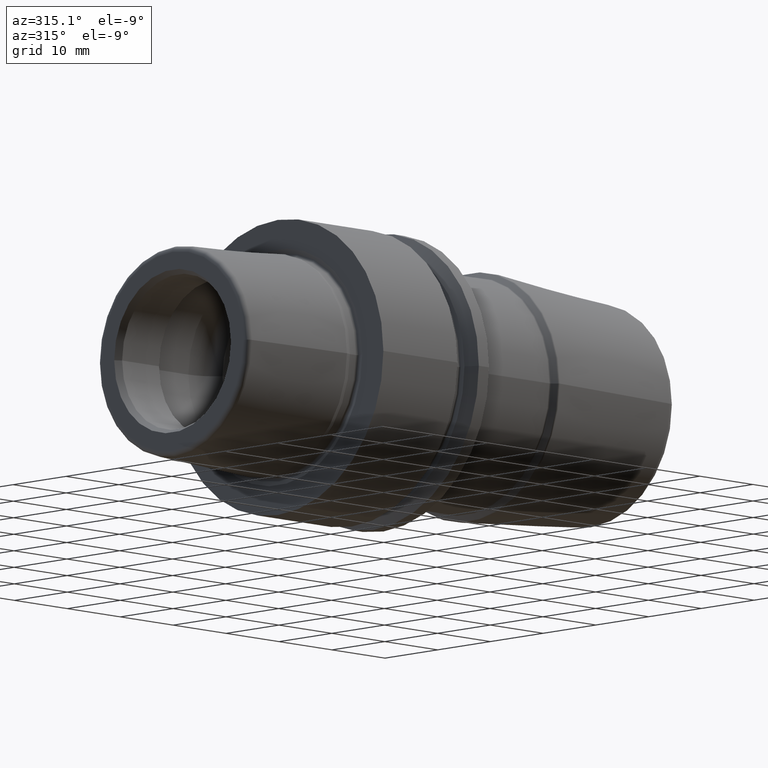
[diagram: clean part render]
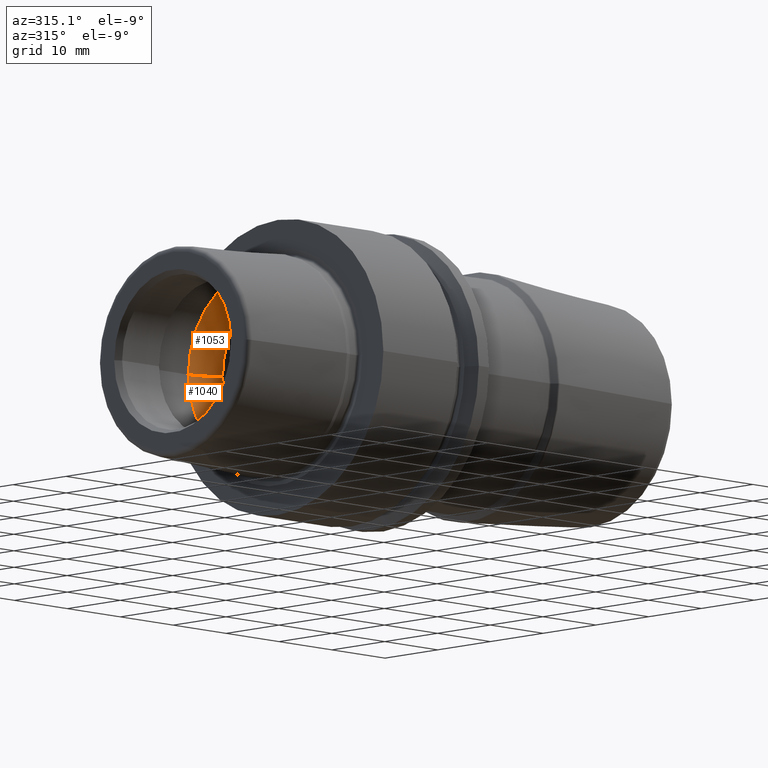
[diagram: same view with one multi-face feature highlighted, each face labeled with its STEP entity id]
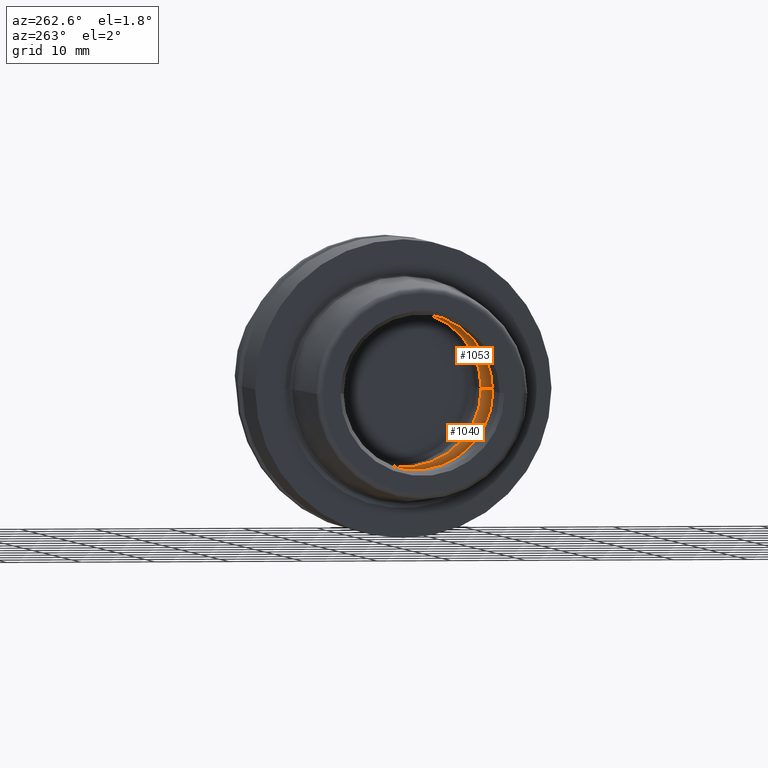
[diagram: same view with one multi-face feature highlighted, each face labeled with its STEP entity id]
A machine part, auxiliary view. The highlighted faces form ONE feature: a constant-radius fillet chain: 2 tangent blend faces with common blend radius 5 mm. The faces share edges in the B-rep.
A second angle (auxiliary view) of the same feature is appended — it is thin or edge-on in the first view.
Their STEP definitions:
[1] entity #1040 (Torus):
#161=CARTESIAN_POINT('',(-4.183373967266E0,0.E0,0.E0));
#162=DIRECTION('',(-1.E0,0.E0,0.E0));
#163=DIRECTION('',(0.E0,1.E0,0.E0));
#164=AXIS2_PLACEMENT_3D('',#161,#162,#163);
#170=CARTESIAN_POINT('',(-4.183373967266E0,7.7825E0,0.E0));
#171=DIRECTION('',(0.E0,0.E0,1.E0));
#172=DIRECTION('',(8.366747934532E-1,5.477E-1,0.E0));
#173=AXIS2_PLACEMENT_3D('',#170,#171,#172);
#175=CARTESIAN_POINT('',(0.E0,0.E0,0.E0));
#176=DIRECTION('',(-1.E0,0.E0,0.E0));
#177=DIRECTION('',(0.E0,1.E0,0.E0));
#178=AXIS2_PLACEMENT_3D('',#175,#176,#177);
#180=CARTESIAN_POINT('',(-4.183373967266E0,-7.7825E0,0.E0));
#181=DIRECTION('',(0.E0,0.E0,-1.E0));
#182=DIRECTION('',(8.366747934532E-1,-5.477E-1,0.E0));
#183=AXIS2_PLACEMENT_3D('',#180,#181,#182);
#716=CARTESIAN_POINT('',(0.E0,1.0521E1,0.E0));
#717=VERTEX_POINT('',#716);
#718=CARTESIAN_POINT('',(-4.183373967266E0,1.27825E1,0.E0));
#719=VERTEX_POINT('',#718);
#728=CARTESIAN_POINT('',(0.E0,-1.0521E1,0.E0));
#729=VERTEX_POINT('',#728);
#730=CARTESIAN_POINT('',(-4.183373967266E0,-1.27825E1,0.E0));
#731=VERTEX_POINT('',#730);
#1026=CARTESIAN_POINT('',(-4.183373967266E0,0.E0,0.E0));
#1027=DIRECTION('',(1.E0,0.E0,0.E0));
#1028=DIRECTION('',(0.E0,-1.E0,0.E0));
#1029=AXIS2_PLACEMENT_3D('',#1026,#1027,#1028);
#1030=TOROIDAL_SURFACE('',#1029,7.7825E0,5.E0);
#1032=ORIENTED_EDGE('',*,*,#1031,.F.);
#1034=ORIENTED_EDGE('',*,*,#1033,.T.);
#1036=ORIENTED_EDGE('',*,*,#1035,.T.);
#1037=ORIENTED_EDGE('',*,*,#1019,.F.);
#1038=EDGE_LOOP('',(#1032,#1034,#1036,#1037));
#1039=FACE_OUTER_BOUND('',#1038,.F.);
#1040=ADVANCED_FACE('',(#1039),#1030,.F.);
#165=CIRCLE('',#164,1.27825E1);
#174=CIRCLE('',#173,5.E0);
#179=CIRCLE('',#178,1.0521E1);
#184=CIRCLE('',#183,5.E0);
#1019=EDGE_CURVE('',#719,#731,#165,.T.);
#1031=EDGE_CURVE('',#717,#719,#174,.T.);
#1033=EDGE_CURVE('',#717,#729,#179,.T.);
#1035=EDGE_CURVE('',#729,#731,#184,.T.);
[2] entity #1053 (Torus):
#152=CARTESIAN_POINT('',(-4.183373967266E0,0.E0,0.E0));
#153=DIRECTION('',(1.E0,0.E0,0.E0));
#154=DIRECTION('',(0.E0,1.E0,0.E0));
#155=AXIS2_PLACEMENT_3D('',#152,#153,#154);
#170=CARTESIAN_POINT('',(-4.183373967266E0,7.7825E0,0.E0));
#171=DIRECTION('',(0.E0,0.E0,1.E0));
#172=DIRECTION('',(8.366747934532E-1,5.477E-1,0.E0));
#173=AXIS2_PLACEMENT_3D('',#170,#171,#172);
#180=CARTESIAN_POINT('',(-4.183373967266E0,-7.7825E0,0.E0));
#181=DIRECTION('',(0.E0,0.E0,-1.E0));
#182=DIRECTION('',(8.366747934532E-1,-5.477E-1,0.E0));
#183=AXIS2_PLACEMENT_3D('',#180,#181,#182);
#185=CARTESIAN_POINT('',(0.E0,0.E0,0.E0));
#186=DIRECTION('',(1.E0,0.E0,0.E0));
#187=DIRECTION('',(0.E0,1.E0,0.E0));
#188=AXIS2_PLACEMENT_3D('',#185,#186,#187);
#716=CARTESIAN_POINT('',(0.E0,1.0521E1,0.E0));
#717=VERTEX_POINT('',#716);
#718=CARTESIAN_POINT('',(-4.183373967266E0,1.27825E1,0.E0));
#719=VERTEX_POINT('',#718);
#728=CARTESIAN_POINT('',(0.E0,-1.0521E1,0.E0));
#729=VERTEX_POINT('',#728);
#730=CARTESIAN_POINT('',(-4.183373967266E0,-1.27825E1,0.E0));
#731=VERTEX_POINT('',#730);
#1041=CARTESIAN_POINT('',(-4.183373967266E0,0.E0,0.E0));
#1042=DIRECTION('',(1.E0,0.E0,0.E0));
#1043=DIRECTION('',(0.E0,-1.E0,0.E0));
#1044=AXIS2_PLACEMENT_3D('',#1041,#1042,#1043);
#1045=TOROIDAL_SURFACE('',#1044,7.7825E0,5.E0);
#1046=ORIENTED_EDGE('',*,*,#1031,.T.);
#1047=ORIENTED_EDGE('',*,*,#1008,.T.);
#1048=ORIENTED_EDGE('',*,*,#1035,.F.);
#1050=ORIENTED_EDGE('',*,*,#1049,.F.);
#1051=EDGE_LOOP('',(#1046,#1047,#1048,#1050));
#1052=FACE_OUTER_BOUND('',#1051,.F.);
#1053=ADVANCED_FACE('',(#1052),#1045,.F.);
#156=CIRCLE('',#155,1.27825E1);
#174=CIRCLE('',#173,5.E0);
#184=CIRCLE('',#183,5.E0);
#189=CIRCLE('',#188,1.0521E1);
#1008=EDGE_CURVE('',#719,#731,#156,.T.);
#1031=EDGE_CURVE('',#717,#719,#174,.T.);
#1035=EDGE_CURVE('',#729,#731,#184,.T.);
#1049=EDGE_CURVE('',#717,#729,#189,.T.);